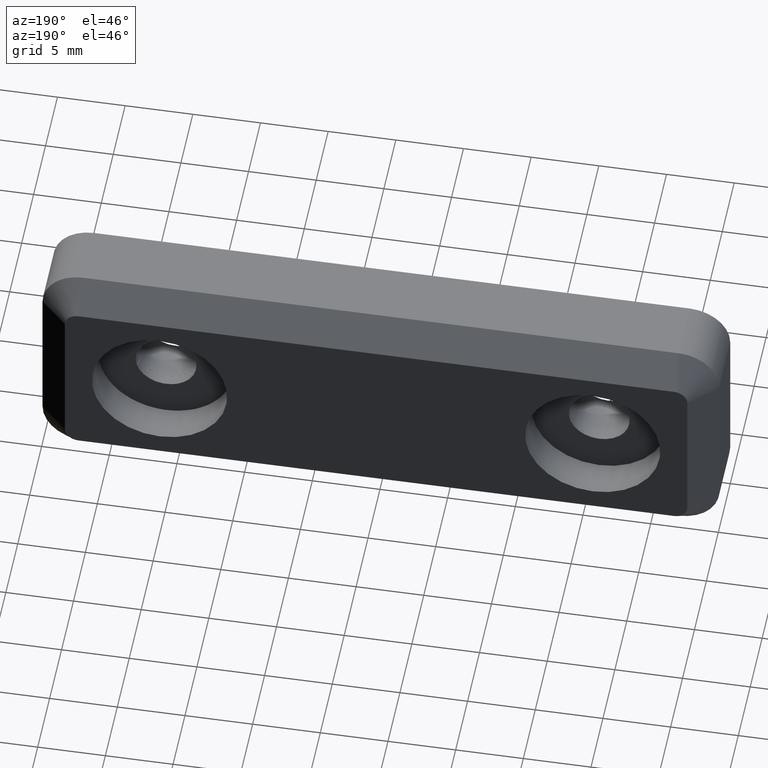
[diagram: clean part render]
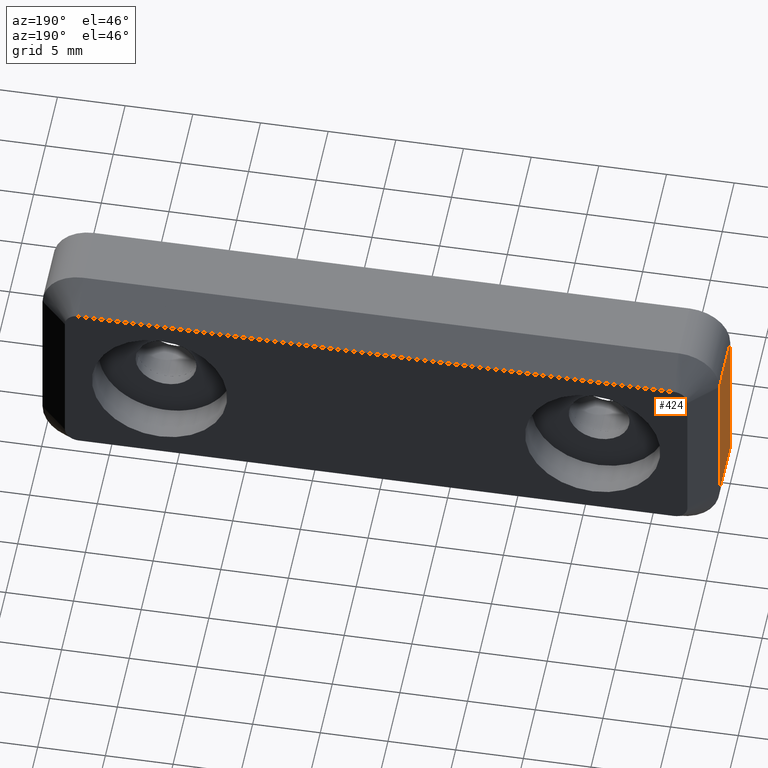
[diagram: same view with one face highlighted and labeled with its STEP entity id]
A machine part, auxiliary view. The second image highlights one B-rep face of the part: STEP entity #424.
In plain terms, the highlighted planar face has unit normal (1, 0, -0).
Its self-contained STEP definition (entity closure, byte-faithful):
#68=FACE_OUTER_BOUND('',#104,.T.);
#104=EDGE_LOOP('',(#328,#329,#330,#331));
#159=LINE('',#666,#187);
#164=LINE('',#707,#192);
#165=LINE('',#709,#193);
#166=LINE('',#710,#194);
#187=VECTOR('',#519,11.);
#192=VECTOR('',#562,4.59999999999999);
#193=VECTOR('',#563,11.);
#194=VECTOR('',#564,4.59999999999999);
#218=VERTEX_POINT('',#663);
#219=VERTEX_POINT('',#665);
#236=VERTEX_POINT('',#706);
#237=VERTEX_POINT('',#708);
#254=EDGE_CURVE('',#219,#218,#159,.T.);
#272=EDGE_CURVE('',#218,#236,#164,.T.);
#273=EDGE_CURVE('',#236,#237,#165,.T.);
#274=EDGE_CURVE('',#237,#219,#166,.T.);
#328=ORIENTED_EDGE('',*,*,#272,.T.);
#329=ORIENTED_EDGE('',*,*,#273,.T.);
#330=ORIENTED_EDGE('',*,*,#274,.T.);
#331=ORIENTED_EDGE('',*,*,#254,.T.);
#406=PLANE('',#471);
#424=ADVANCED_FACE('',(#68),#406,.F.);
#471=AXIS2_PLACEMENT_3D('',#705,#560,#561);
#519=DIRECTION('',(-4.08170229641602E-16,0.,-1.));
#560=DIRECTION('center_axis',(-1.,0.,4.08170229641602E-16));
#561=DIRECTION('ref_axis',(0.,0.,1.));
#562=DIRECTION('',(0.,1.,0.));
#563=DIRECTION('',(4.08170229641602E-16,0.,1.));
#564=DIRECTION('',(0.,-1.,0.));
#663=CARTESIAN_POINT('',(25.,0.,-5.5));
#665=CARTESIAN_POINT('',(25.,0.,5.5));
#666=CARTESIAN_POINT('',(25.,0.,-8.5));
#705=CARTESIAN_POINT('Origin',(25.,6.6,-8.5));
#706=CARTESIAN_POINT('',(25.,4.59999999999999,-5.5));
#707=CARTESIAN_POINT('',(25.,6.6,-5.5));
#708=CARTESIAN_POINT('',(25.,4.59999999999999,5.5));
#709=CARTESIAN_POINT('',(25.,4.59999999999999,5.5));
#710=CARTESIAN_POINT('',(25.,6.6,5.5));